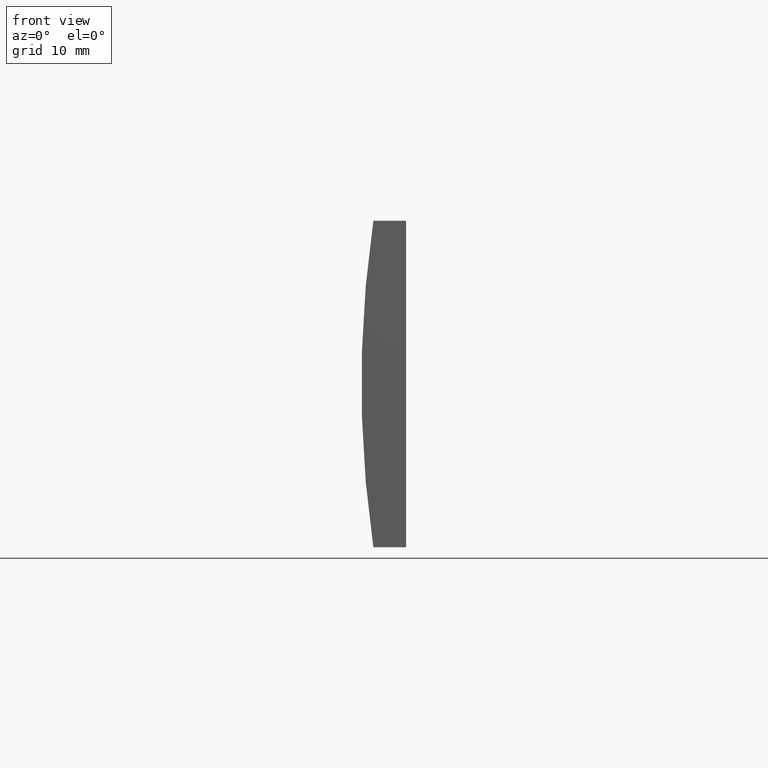
[diagram: clean part render]
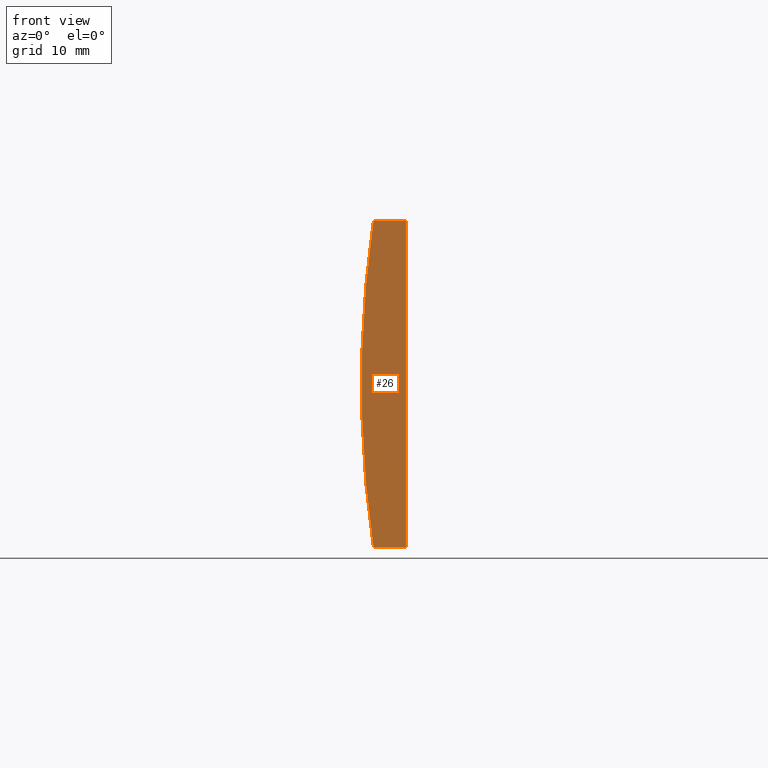
[diagram: same view with one face highlighted and labeled with its STEP entity id]
A machine part, front view. The second image highlights one B-rep face of the part: STEP entity #26.
In plain terms, the highlighted planar face has unit normal (0, 1, 0).
Its self-contained STEP definition (entity closure, byte-faithful):
#3 = VERTEX_POINT ( 'NONE', #147 ) ;
#4 = VECTOR ( 'NONE', #148, 1000.000000000000000 ) ;
#6 = FACE_OUTER_BOUND ( 'NONE', #144, .T. ) ;
#20 = CARTESIAN_POINT ( 'NONE',  ( -97.95100271046932500, 0.0000000000000000000, -15.00000000000000000 ) ) ;
#25 = LINE ( 'NONE', #97, #114 ) ;
#26 = ADVANCED_FACE ( 'NONE', ( #6 ), #49, .F. ) ;
#32 = DIRECTION ( 'NONE',  ( 0.0000000000000000000, 0.0000000000000000000, 1.000000000000000000 ) ) ;
#34 = CARTESIAN_POINT ( 'NONE',  ( -97.95100271046932500, 0.0000000000000000000, 15.00000000000000000 ) ) ;
#38 = DIRECTION ( 'NONE',  ( 0.0000000000000000000, 1.000000000000000000, 0.0000000000000000000 ) ) ;
#41 = CARTESIAN_POINT ( 'NONE',  ( -94.94479566514874600, 0.0000000000000000000, 15.00000000000000000 ) ) ;
#43 = DIRECTION ( 'NONE',  ( -4.625929269271485900E-016, -0.0000000000000000000, -1.000000000000000000 ) ) ;
#46 = CARTESIAN_POINT ( 'NONE',  ( -97.95100271046932500, 0.0000000000000000000, 15.00000000000000000 ) ) ;
#49 = PLANE ( 'NONE',  #79 ) ;
#62 = CARTESIAN_POINT ( 'NONE',  ( 4.355204334851265500, 0.0000000000000000000, 4.286263797015675000E-017 ) ) ;
#63 = ORIENTED_EDGE ( 'NONE', *, *, #111, .F. ) ;
#69 = EDGE_CURVE ( 'NONE', #191, #176, #87, .T. ) ;
#79 = AXIS2_PLACEMENT_3D ( 'NONE', #62, #82, #180 ) ;
#80 = CIRCLE ( 'NONE', #179, 103.4000000000000200 ) ;
#82 = DIRECTION ( 'NONE',  ( 0.0000000000000000000, 1.000000000000000000, 0.0000000000000000000 ) ) ;
#87 = LINE ( 'NONE', #34, #157 ) ;
#89 = LINE ( 'NONE', #20, #4 ) ;
#90 = EDGE_CURVE ( 'NONE', #3, #191, #80, .T. ) ;
#97 = CARTESIAN_POINT ( 'NONE',  ( -94.94479566514876000, 0.0000000000000000000, -15.00000000000000400 ) ) ;
#105 = EDGE_CURVE ( 'NONE', #175, #3, #89, .T. ) ;
#106 = CARTESIAN_POINT ( 'NONE',  ( -94.94479566514876000, 0.0000000000000000000, -15.00000000000000400 ) ) ;
#111 = EDGE_CURVE ( 'NONE', #176, #175, #25, .T. ) ;
#114 = VECTOR ( 'NONE', #43, 1000.000000000000000 ) ;
#118 = ORIENTED_EDGE ( 'NONE', *, *, #105, .F. ) ;
#121 = DIRECTION ( 'NONE',  ( 1.000000000000000000, 0.0000000000000000000, 0.0000000000000000000 ) ) ;
#124 = CARTESIAN_POINT ( 'NONE',  ( 4.355204334851265500, 0.0000000000000000000, 4.286263797015675000E-017 ) ) ;
#144 = EDGE_LOOP ( 'NONE', ( #164, #118, #63, #181 ) ) ;
#147 = CARTESIAN_POINT ( 'NONE',  ( -97.95100271046932500, 0.0000000000000000000, -15.00000000000000000 ) ) ;
#148 = DIRECTION ( 'NONE',  ( -1.000000000000000000, -0.0000000000000000000, 1.154094478407304000E-015 ) ) ;
#157 = VECTOR ( 'NONE', #121, 1000.000000000000000 ) ;
#164 = ORIENTED_EDGE ( 'NONE', *, *, #90, .F. ) ;
#175 = VERTEX_POINT ( 'NONE', #106 ) ;
#176 = VERTEX_POINT ( 'NONE', #41 ) ;
#179 = AXIS2_PLACEMENT_3D ( 'NONE', #124, #38, #32 ) ;
#180 = DIRECTION ( 'NONE',  ( 0.0000000000000000000, -0.0000000000000000000, 1.000000000000000000 ) ) ;
#181 = ORIENTED_EDGE ( 'NONE', *, *, #69, .F. ) ;
#191 = VERTEX_POINT ( 'NONE', #46 ) ;